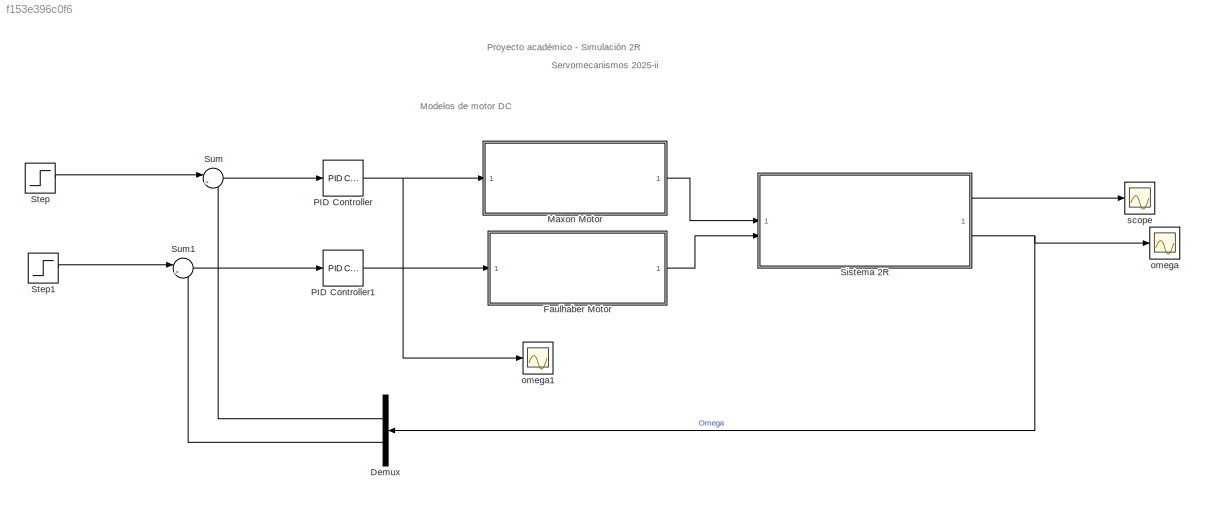
MODEL slx_f153e396c0f6
KIND model
CONFIG AbsTol = auto
CONFIG EnableMultiTasking = off
CONFIG FixedStep = auto
CONFIG MaxStep = auto
CONFIG MinStep = auto
CONFIG RelTol = 1e-3
CONFIG SampleTimeConstraint = Unconstrained
CONFIG SolverName = VariableStepAuto
CONFIG StartTime = 0.0
CONFIG StopTime = 10.0
BLOCK [Demux] Demux
  NameLocation = top
  Outputs = 2
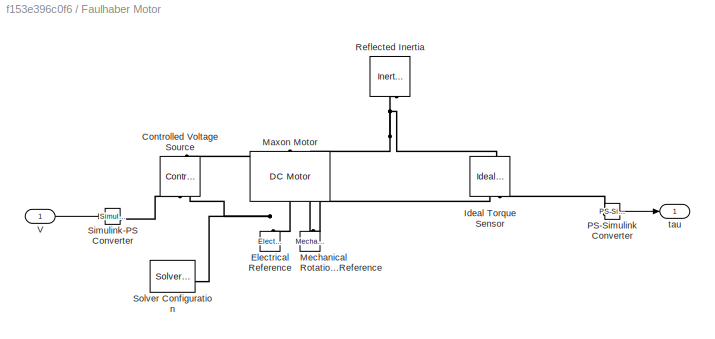
BLOCK [SubSystem] Faulhaber Motor
BLOCK [Reference] Faulhaber Motor/Controlled Voltage Source  REF=fl_lib/Electrical/Electrical Sources/Controlled Voltage
Source
  NameLocation = right
  SourceBlock = fl_lib/Electrical/Electrical Sources/Controlled Voltage\nSource
  SourceType = Controlled Voltage\nSource
BLOCK [Reference] Faulhaber Motor/Electrical Reference  REF=fl_lib/Electrical/Electrical Elements/Electrical Reference
  NameLocation = right
  SourceBlock = fl_lib/Electrical/Electrical Elements/Electrical Reference
  SourceType = Electrical Reference
BLOCK [Reference] Faulhaber Motor/Ideal Torque Sensor  REF=fl_lib/Mechanical/Mechanical Sensors/Ideal Torque Sensor
  NameLocation = left
  SourceBlock = fl_lib/Mechanical/Mechanical Sensors/Ideal Torque Sensor
  SourceType = Ideal Torque Sensor
BLOCK [Reference] Faulhaber Motor/Maxon Motor  REF=ee_lib/Electromechanical/Brushed Motors/DC Motor
  NameLocation = right
  SourceBlock = ee_lib/Electromechanical/Brushed Motors/DC Motor
  SourceType = DC Motor
BLOCK [Reference] Faulhaber Motor/Mechanical Rotational Reference  REF=fl_lib/Mechanical/Rotational Elements/Mechanical
Rotational Reference
  NameLocation = right
  SourceBlock = fl_lib/Mechanical/Rotational Elements/Mechanical\nRotational Reference
  SourceType = Mechanical\nRotational Reference
BLOCK [Reference] Faulhaber Motor/PS-Simulink Converter  REF=nesl_utility/PS-Simulink
Converter
  SourceBlock = nesl_utility/PS-Simulink\nConverter
  SourceType = PS-Simulink\nConverter
BLOCK [Reference] Faulhaber Motor/Reflected Inertia  REF=fl_lib/Mechanical/Rotational Elements/Inertia
  NameLocation = left
  SourceBlock = fl_lib/Mechanical/Rotational Elements/Inertia
  SourceType = Inertia
BLOCK [Reference] Faulhaber Motor/Simulink-PS Converter  REF=nesl_utility/Simulink-PS
Converter
  SourceBlock = nesl_utility/Simulink-PS\nConverter
  SourceType = Simulink-PS\nConverter
BLOCK [Reference] Faulhaber Motor/Solver Configuration  REF=nesl_utility/Solver
Configuration
  SourceBlock = nesl_utility/Solver\nConfiguration
  SourceType = Solver\nConfiguration
BLOCK [Inport] Faulhaber Motor/V
BLOCK [Outport] Faulhaber Motor/tau
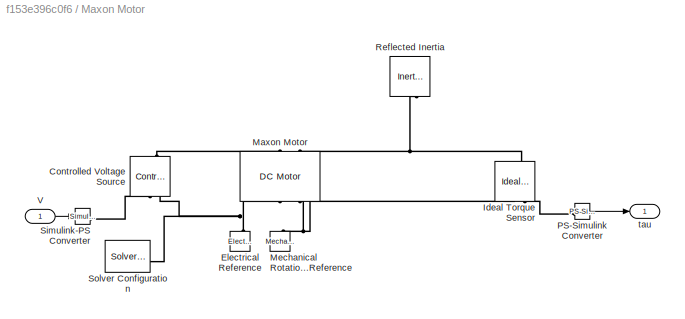
BLOCK [SubSystem] Maxon Motor
BLOCK [Reference] Maxon Motor/Controlled Voltage Source  REF=fl_lib/Electrical/Electrical Sources/Controlled Voltage
Source
  NameLocation = right
  SourceBlock = fl_lib/Electrical/Electrical Sources/Controlled Voltage\nSource
  SourceType = Controlled Voltage\nSource
BLOCK [Reference] Maxon Motor/Electrical Reference  REF=fl_lib/Electrical/Electrical Elements/Electrical Reference
  NameLocation = right
  SourceBlock = fl_lib/Electrical/Electrical Elements/Electrical Reference
  SourceType = Electrical Reference
BLOCK [Reference] Maxon Motor/Ideal Torque Sensor  REF=fl_lib/Mechanical/Mechanical Sensors/Ideal Torque Sensor
  NameLocation = left
  SourceBlock = fl_lib/Mechanical/Mechanical Sensors/Ideal Torque Sensor
  SourceType = Ideal Torque Sensor
BLOCK [Reference] Maxon Motor/Maxon Motor  REF=ee_lib/Electromechanical/Brushed Motors/DC Motor
  NameLocation = right
  SourceBlock = ee_lib/Electromechanical/Brushed Motors/DC Motor
  SourceType = DC Motor
BLOCK [Reference] Maxon Motor/Mechanical Rotational Reference  REF=fl_lib/Mechanical/Rotational Elements/Mechanical
Rotational Reference
  NameLocation = right
  SourceBlock = fl_lib/Mechanical/Rotational Elements/Mechanical\nRotational Reference
  SourceType = Mechanical\nRotational Reference
BLOCK [Reference] Maxon Motor/PS-Simulink Converter  REF=nesl_utility/PS-Simulink
Converter
  SourceBlock = nesl_utility/PS-Simulink\nConverter
  SourceType = PS-Simulink\nConverter
BLOCK [Reference] Maxon Motor/Reflected Inertia  REF=fl_lib/Mechanical/Rotational Elements/Inertia
  NameLocation = left
  SourceBlock = fl_lib/Mechanical/Rotational Elements/Inertia
  SourceType = Inertia
BLOCK [Reference] Maxon Motor/Simulink-PS Converter  REF=nesl_utility/Simulink-PS
Converter
  SourceBlock = nesl_utility/Simulink-PS\nConverter
  SourceType = Simulink-PS\nConverter
BLOCK [Reference] Maxon Motor/Solver Configuration  REF=nesl_utility/Solver
Configuration
  SourceBlock = nesl_utility/Solver\nConfiguration
  SourceType = Solver\nConfiguration
BLOCK [Inport] Maxon Motor/V
BLOCK [Outport] Maxon Motor/tau
BLOCK [Reference] PID Controller  REF=slpidlib/PID Controller
  LibrarySourceBlock = simulink/Continuous/PID Controller
  SourceBlock = slpidlib/PID Controller
  SourceType = PID 1dof
BLOCK [Reference] PID Controller1  REF=slpidlib/PID Controller
  LibrarySourceBlock = simulink/Continuous/PID Controller
  SourceBlock = slpidlib/PID Controller
  SourceType = PID 1dof
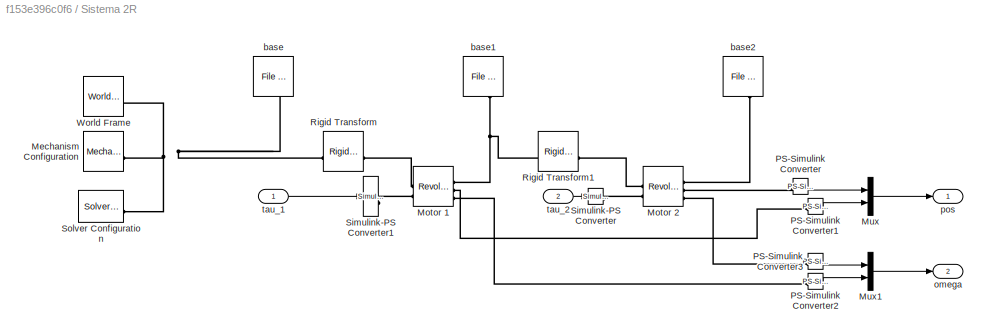
BLOCK [SubSystem] Sistema 2R
BLOCK [Reference] Sistema 2R/Mechanism Configuration  REF=sm_lib/Utilities/Mechanism
Configuration
  SourceBlock = sm_lib/Utilities/Mechanism\nConfiguration
  SourceType = Mechanism\nConfiguration
BLOCK [Reference] Sistema 2R/Motor 1  REF=sm_lib/Joints/Revolute Joint
  SourceBlock = sm_lib/Joints/Revolute Joint
  SourceType = Revolute Joint
BLOCK [Reference] Sistema 2R/Motor 2  REF=sm_lib/Joints/Revolute Joint
  SourceBlock = sm_lib/Joints/Revolute Joint
  SourceType = Revolute Joint
BLOCK [Mux] Sistema 2R/Mux
  DisplayOption = bar
  Inputs = 2
BLOCK [Mux] Sistema 2R/Mux1
  DisplayOption = bar
  Inputs = 2
BLOCK [Reference] Sistema 2R/PS-Simulink Converter  REF=nesl_utility/PS-Simulink
Converter
  SourceBlock = nesl_utility/PS-Simulink\nConverter
  SourceType = PS-Simulink\nConverter
BLOCK [Reference] Sistema 2R/PS-Simulink Converter1  REF=nesl_utility/PS-Simulink
Converter
  SourceBlock = nesl_utility/PS-Simulink\nConverter
  SourceType = PS-Simulink\nConverter
BLOCK [Reference] Sistema 2R/PS-Simulink Converter2  REF=nesl_utility/PS-Simulink
Converter
  SourceBlock = nesl_utility/PS-Simulink\nConverter
  SourceType = PS-Simulink\nConverter
BLOCK [Reference] Sistema 2R/PS-Simulink Converter3  REF=nesl_utility/PS-Simulink
Converter
  SourceBlock = nesl_utility/PS-Simulink\nConverter
  SourceType = PS-Simulink\nConverter
BLOCK [Reference] Sistema 2R/Rigid Transform  REF=sm_lib/Frames and
Transforms/Rigid
Transform
  NameLocation = top
  SourceBlock = sm_lib/Frames and\nTransforms/Rigid\nTransform
  SourceType = Rigid\nTransform
BLOCK [Reference] Sistema 2R/Rigid Transform1  REF=sm_lib/Frames and
Transforms/Rigid
Transform
  SourceBlock = sm_lib/Frames and\nTransforms/Rigid\nTransform
  SourceType = Rigid\nTransform
BLOCK [Reference] Sistema 2R/Simulink-PS Converter  REF=nesl_utility/Simulink-PS
Converter
  SourceBlock = nesl_utility/Simulink-PS\nConverter
  SourceType = Simulink-PS\nConverter
BLOCK [Reference] Sistema 2R/Simulink-PS Converter1  REF=nesl_utility/Simulink-PS
Converter
  SourceBlock = nesl_utility/Simulink-PS\nConverter
  SourceType = Simulink-PS\nConverter
BLOCK [Reference] Sistema 2R/Solver Configuration  REF=nesl_utility/Solver
Configuration
  SourceBlock = nesl_utility/Solver\nConfiguration
  SourceType = Solver\nConfiguration
BLOCK [Reference] Sistema 2R/World Frame  REF=sm_lib/Frames and
Transforms/World Frame
  SourceBlock = sm_lib/Frames and\nTransforms/World Frame
  SourceType = World Frame
BLOCK [Reference] Sistema 2R/base  REF=sm_lib/Body Elements/File Solid
  NameLocation = top
  SourceBlock = sm_lib/Body Elements/File Solid
  SourceType = File Solid
BLOCK [Reference] Sistema 2R/base1  REF=sm_lib/Body Elements/File Solid
  NameLocation = top
  SourceBlock = sm_lib/Body Elements/File Solid
  SourceType = File Solid
BLOCK [Reference] Sistema 2R/base2  REF=sm_lib/Body Elements/File Solid
  NameLocation = top
  SourceBlock = sm_lib/Body Elements/File Solid
  SourceType = File Solid
BLOCK [Outport] Sistema 2R/omega
  Port = 2
BLOCK [Outport] Sistema 2R/pos
BLOCK [Inport] Sistema 2R/tau_1
BLOCK [Inport] Sistema 2R/tau_2
  Port = 2
BLOCK [Step] Step
  After = 0
  Before = 2
  SampleTime = 0
  Time = 3
BLOCK [Step] Step1
  After = -1
  SampleTime = 0
  Time = 5
BLOCK [Sum] Sum
  Inputs = |+-
BLOCK [Sum] Sum1
  Inputs = |+-
BLOCK [Scope] omega
  ActiveDisplayYMaximum = 1
  ActiveDisplayYMinimum = -1
  DataLoggingVariableName = ScopeData1
  Floating = off
  GraphicalSettings = {"Style":{"BackgroundColor":[0.12941176470588237,0.12941176470588237,0.12941176470588237],"AxesColor":[0.07058823529411765,0.07058823529411765,0.07058823529411765],"LabelsColor":[0.8509803921568627,0.8509803921568627,0.8509803921568627],"PreserveColors":false,"Visible":[true,true],"LineStyle":["-","-"],"LineWidth":[1.5,1.5],"BarWidth":[0.9,0.9],"LineColor":["auto","auto"],"LineFaceAlpha":[1,1],"Li...<+2009ch>
  MultipleDisplayCache = [{"MaxYLimMag":1,"MaxYLimReal":1,"MinYLimMag":0,"MinYLimReal":-1,"PlotAsMagnitudePhase":false,"ShowGrid":true,"ShowLegend":true,"Title":"%<SignalLabel>","YLabel":""}]
  NumInputPorts = 1
  ScopeFrameLocation = window
  ShowLegend = on
  WasSavedAsWebScope = on
  WindowPosition = [476.000000,234.000000,935.000000,467.000000,]
BLOCK [Scope] omega1
  ActiveDisplayYMaximum = 1667.3824484575073
  ActiveDisplayYMinimum = -185.26471649527855
  DataLoggingVariableName = ScopeData2
  Floating = off
  GraphicalSettings = {"Style":{"BackgroundColor":[0.12941176470588237,0.12941176470588237,0.12941176470588237],"AxesColor":[0.07058823529411765,0.07058823529411765,0.07058823529411765],"LabelsColor":[0.8509803921568627,0.8509803921568627,0.8509803921568627],"PreserveColors":false,"Visible":[true],"LineStyle":["-"],"LineWidth":[1.5],"BarWidth":[0.9],"LineColor":["auto"],"LineFaceAlpha":[1],"LineEdgeAlpha":[1],"Marker":...<+2011ch>
  MultipleDisplayCache = [{"MaxYLimMag":1667.3824484575073,"MaxYLimReal":1667.3824484575073,"MinYLimMag":0,"MinYLimReal":-185.26471649527855,"PlotAsMagnitudePhase":false,"ShowGrid":true,"ShowLegend":true,"Title":"%<SignalLabel>","YLabel":""}]
  NumInputPorts = 1
  ScopeFrameLocation = window
  ShowLegend = on
  WasSavedAsWebScope = on
  WindowPosition = [476.000000,234.000000,935.000000,467.000000,]
BLOCK [Scope] scope
  ActiveDisplayYMaximum = 183.27688056263287
  ActiveDisplayYMinimum = -23.277920174251605
  Floating = off
  GraphicalSettings = {"Style":{"BackgroundColor":[0.12941176470588237,0.12941176470588237,0.12941176470588237],"AxesColor":[0.07058823529411765,0.07058823529411765,0.07058823529411765],"LabelsColor":[0.8509803921568627,0.8509803921568627,0.8509803921568627],"PreserveColors":false,"Visible":[true,true],"LineStyle":["-","-"],"LineWidth":[1.5,1.5],"BarWidth":[0.9,0.9],"LineColor":["auto","auto"],"LineFaceAlpha":[1,1],"Li...<+2106ch>
  MultipleDisplayCache = [{"MaxYLimMag":183.27688056263287,"MaxYLimReal":183.27688056263287,"MinYLimMag":0,"MinYLimReal":-23.277920174251605,"PlotAsMagnitudePhase":false,"ShowGrid":true,"ShowLegend":true,"Title":"%<SignalLabel>","YLabel":""}]
  NumInputPorts = 1
  ScopeFrameLocation = window
  ShowLegend = on
  WasSavedAsWebScope = on
  WindowPosition = [476.000000,234.000000,935.000000,467.000000,]
ANNOTATION (root): Servomecanismos 2025-ii
ANNOTATION (root): Proyecto académico - Simulación 2R
ANNOTATION (root): Modelos de motor DC
LINE Demux:1 -> Sum:2
LINE Demux:2 -> Sum1:2
LINE Faulhaber Motor/PS-Simulink Converter:1 -> Faulhaber Motor/tau:1
LINE Faulhaber Motor/V:1 -> Faulhaber Motor/Simulink-PS Converter:1
LINE Faulhaber Motor:1 -> Sistema 2R:2
LINE Maxon Motor/PS-Simulink Converter:1 -> Maxon Motor/tau:1
LINE Maxon Motor/V:1 -> Maxon Motor/Simulink-PS Converter:1
LINE Maxon Motor:1 -> Sistema 2R:1
LINE PID Controller1:1 -> Faulhaber Motor:1
NET PID Controller:1 -> Maxon Motor:1, omega1:1
LINE Sistema 2R/Mux1:1 -> Sistema 2R/omega:1
LINE Sistema 2R/Mux:1 -> Sistema 2R/pos:1
LINE Sistema 2R/PS-Simulink Converter1:1 -> Sistema 2R/Mux:2
LINE Sistema 2R/PS-Simulink Converter2:1 -> Sistema 2R/Mux1:2
LINE Sistema 2R/PS-Simulink Converter3:1 -> Sistema 2R/Mux1:1
LINE Sistema 2R/PS-Simulink Converter:1 -> Sistema 2R/Mux:1
LINE Sistema 2R/tau_1:1 -> Sistema 2R/Simulink-PS Converter1:1
LINE Sistema 2R/tau_2:1 -> Sistema 2R/Simulink-PS Converter:1
LINE Sistema 2R:1 -> scope:1
NET Sistema 2R:2 -> Demux:1, omega:1
LINE Step1:1 -> Sum1:1
LINE Step:1 -> Sum:1
LINE Sum1:1 -> PID Controller1:1
LINE Sum:1 -> PID Controller:1
PLINE Faulhaber Motor/Controlled Voltage Source:LConn1 -- Faulhaber Motor/Maxon Motor:LConn1
PLINE Faulhaber Motor/Controlled Voltage Source:RConn1 -- Faulhaber Motor/Simulink-PS Converter:RConn1
PNET net1: Faulhaber Motor/Controlled Voltage Source:RConn2 -- Faulhaber Motor/Electrical Reference:LConn1 -- Faulhaber Motor/Maxon Motor:RConn1 -- Faulhaber Motor/Solver Configuration:RConn1
PNET net2: Faulhaber Motor/Ideal Torque Sensor:LConn1 -- Faulhaber Motor/Maxon Motor:LConn2 -- Faulhaber Motor/Reflected Inertia:LConn1
PNET net3: Faulhaber Motor/Ideal Torque Sensor:RConn1 -- Faulhaber Motor/Maxon Motor:RConn2 -- Faulhaber Motor/Mechanical Rotational Reference:LConn1
PLINE Faulhaber Motor/Ideal Torque Sensor:RConn2 -- Faulhaber Motor/PS-Simulink Converter:LConn1
PLINE Maxon Motor/Controlled Voltage Source:LConn1 -- Maxon Motor/Maxon Motor:LConn1
PLINE Maxon Motor/Controlled Voltage Source:RConn1 -- Maxon Motor/Simulink-PS Converter:RConn1
PNET net4: Maxon Motor/Controlled Voltage Source:RConn2 -- Maxon Motor/Electrical Reference:LConn1 -- Maxon Motor/Maxon Motor:RConn1 -- Maxon Motor/Solver Configuration:RConn1
PNET net5: Maxon Motor/Ideal Torque Sensor:LConn1 -- Maxon Motor/Maxon Motor:LConn2 -- Maxon Motor/Reflected Inertia:LConn1
PNET net6: Maxon Motor/Ideal Torque Sensor:RConn1 -- Maxon Motor/Maxon Motor:RConn2 -- Maxon Motor/Mechanical Rotational Reference:LConn1
PLINE Maxon Motor/Ideal Torque Sensor:RConn2 -- Maxon Motor/PS-Simulink Converter:LConn1
PNET net7: Sistema 2R/Mechanism Configuration:RConn1 -- Sistema 2R/Rigid Transform:LConn1 -- Sistema 2R/Solver Configuration:RConn1 -- Sistema 2R/World Frame:RConn1 -- Sistema 2R/base:RConn1
PLINE Sistema 2R/Motor 1:LConn1 -- Sistema 2R/Rigid Transform:RConn1
PLINE Sistema 2R/Motor 1:LConn2 -- Sistema 2R/Simulink-PS Converter1:RConn1
PNET net8: Sistema 2R/Motor 1:RConn1 -- Sistema 2R/Rigid Transform1:LConn1 -- Sistema 2R/base1:LConn1
PLINE Sistema 2R/Motor 1:RConn2 -- Sistema 2R/PS-Simulink Converter1:LConn1
PLINE Sistema 2R/Motor 1:RConn3 -- Sistema 2R/PS-Simulink Converter2:LConn1
PLINE Sistema 2R/Motor 2:LConn1 -- Sistema 2R/Rigid Transform1:RConn1
PLINE Sistema 2R/Motor 2:LConn2 -- Sistema 2R/Simulink-PS Converter:RConn1
PLINE Sistema 2R/Motor 2:RConn1 -- Sistema 2R/base2:LConn1
PLINE Sistema 2R/Motor 2:RConn2 -- Sistema 2R/PS-Simulink Converter:LConn1
PLINE Sistema 2R/Motor 2:RConn3 -- Sistema 2R/PS-Simulink Converter3:LConn1
note: NET lines group one-source signal fan-out (src -> all destinations, sorted); 1:1 wires keep LINE; PNET lines group multi-terminal physical nets as a canonical sorted terminal list (undirected conserving connections); 2-terminal nets keep the pairwise PLINE form
